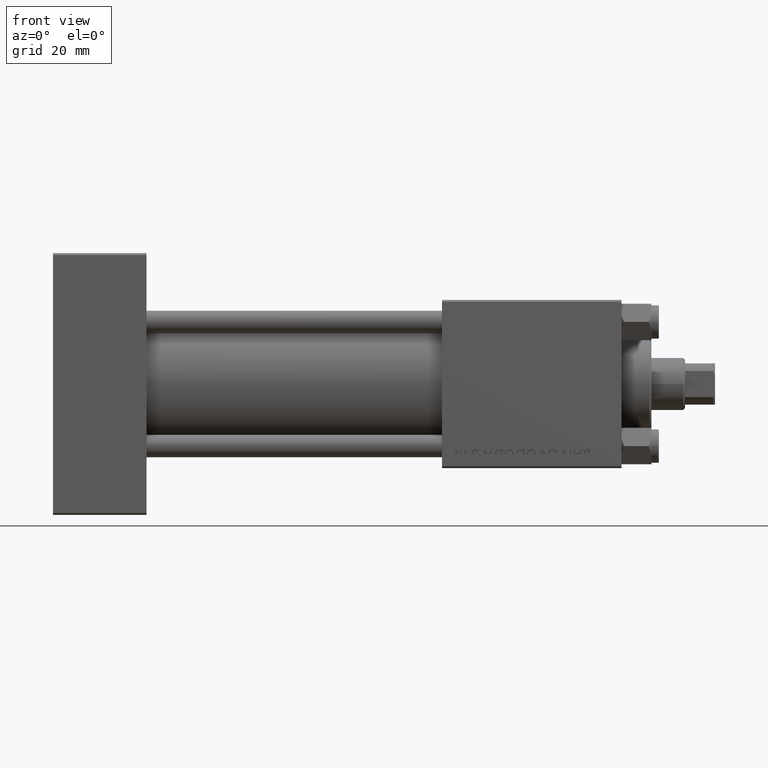
[diagram: clean part render]
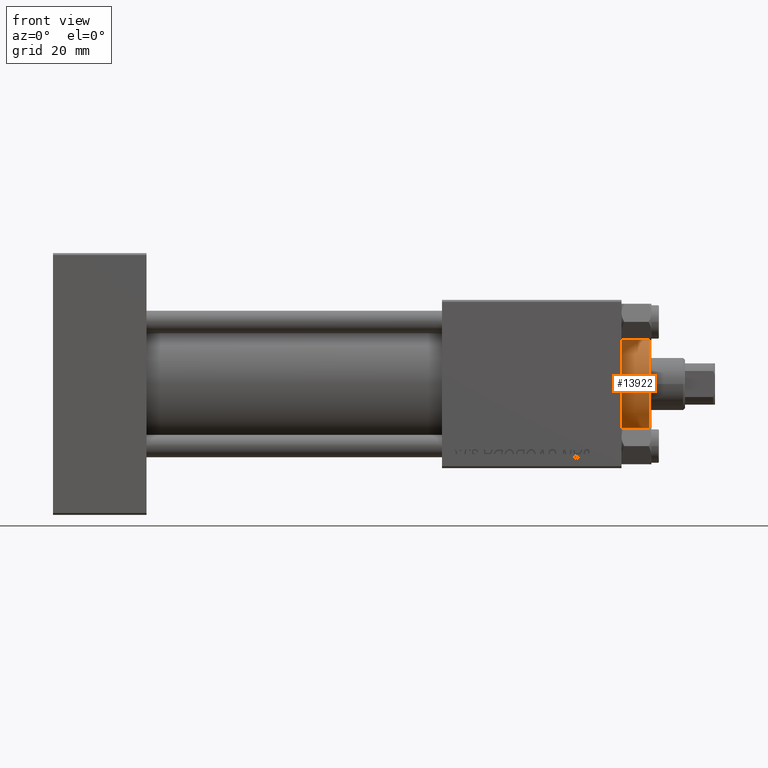
[diagram: same view with one face highlighted and labeled with its STEP entity id]
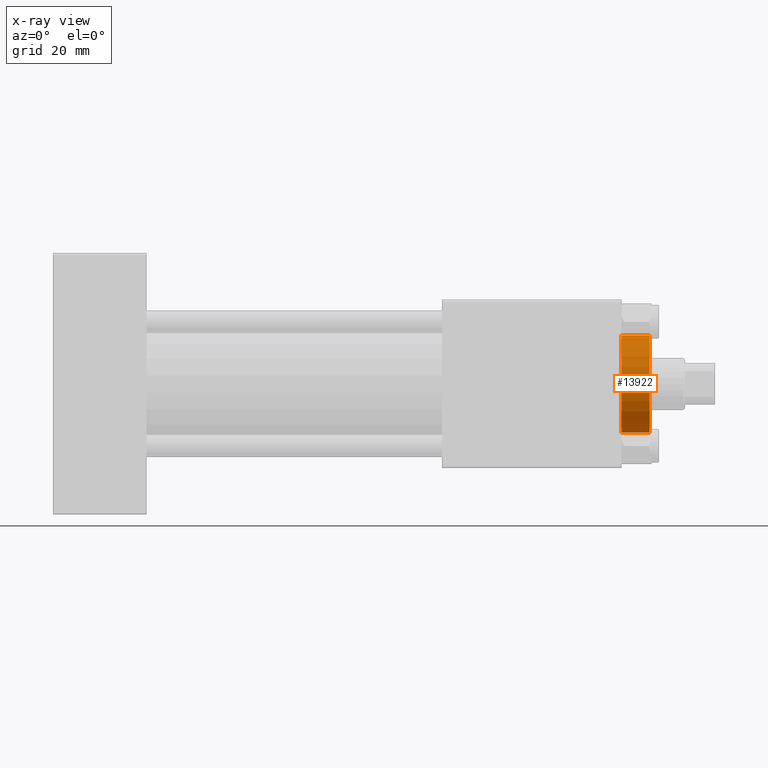
[diagram: x-ray of the same camera — body ghosted, the highlighted face saturated]
A machine part, front view. The second image highlights one B-rep face of the part: STEP entity #13922.
The next image is the same camera in x-ray: the body ghosted, the highlighted face saturated — about 0% of this face is hidden behind the body in this view.
In plain terms, the highlighted cylindrical surface (partial cylindrical patch) has radius 13 mm, axis along (-1, -0, 0).
Its self-contained STEP definition (entity closure, byte-faithful):
#2173 = EDGE_CURVE ( 'NONE', #18007, #6856, #14512, .T. ) ;
#2360 = CARTESIAN_POINT ( 'NONE',  ( -13.00000000000000178, 0.000000000000000000, 36.69999999999999574 ) ) ;
#3246 = EDGE_LOOP ( 'NONE', ( #9283, #44826, #26133, #14409 ) ) ;
#3351 = EDGE_CURVE ( 'NONE', #42212, #6856, #29241, .T. ) ;
#4205 = FACE_OUTER_BOUND ( 'NONE', #3246, .T. ) ;
#4529 = AXIS2_PLACEMENT_3D ( 'NONE', #23363, #42854, #8229 ) ;
#6856 = VERTEX_POINT ( 'NONE', #12021 ) ;
#6987 = CARTESIAN_POINT ( 'NONE',  ( -13.00000000000000178, 0.000000000000000000, 28.69999999999999929 ) ) ;
#7952 = EDGE_CURVE ( 'NONE', #18007, #16523, #42245, .T. ) ;
#8229 = DIRECTION ( 'NONE',  ( -1.000000000000000000, 0.000000000000000000, 0.000000000000000000 ) ) ;
#8281 = DIRECTION ( 'NONE',  ( 0.000000000000000000, 0.000000000000000000, -1.000000000000000000 ) ) ;
#9283 = ORIENTED_EDGE ( 'NONE', *, *, #2173, .F. ) ;
#9600 = EDGE_CURVE ( 'NONE', #16523, #42212, #13698, .T. ) ;
#12021 = CARTESIAN_POINT ( 'NONE',  ( 13.00000000000000178, 1.592040838891559293E-15, 28.69999999999999929 ) ) ;
#13698 = LINE ( 'NONE', #2360, #47961 ) ;
#13922 = ADVANCED_FACE ( 'NONE', ( #4205 ), #23869, .T. ) ;
#14409 = ORIENTED_EDGE ( 'NONE', *, *, #3351, .T. ) ;
#14512 = LINE ( 'NONE', #44618, #39720 ) ;
#16523 = VERTEX_POINT ( 'NONE', #25137 ) ;
#18007 = VERTEX_POINT ( 'NONE', #23875 ) ;
#22917 = CARTESIAN_POINT ( 'NONE',  ( 0.000000000000000000, 0.000000000000000000, 28.69999999999999929 ) ) ;
#23363 = CARTESIAN_POINT ( 'NONE',  ( 0.000000000000000000, 0.000000000000000000, 36.69999999999999574 ) ) ;
#23869 = CYLINDRICAL_SURFACE ( 'NONE', #4529, 13.00000000000000178 ) ;
#23875 = CARTESIAN_POINT ( 'NONE',  ( 13.00000000000000178, 1.592040838891559293E-15, 36.20000000000000995 ) ) ;
#24402 = AXIS2_PLACEMENT_3D ( 'NONE', #22917, #38353, #25958 ) ;
#24473 = AXIS2_PLACEMENT_3D ( 'NONE', #42905, #8281, #38366 ) ;
#25137 = CARTESIAN_POINT ( 'NONE',  ( -13.00000000000000178, 0.000000000000000000, 36.20000000000000995 ) ) ;
#25641 = DIRECTION ( 'NONE',  ( -0.000000000000000000, -0.000000000000000000, -1.000000000000000000 ) ) ;
#25958 = DIRECTION ( 'NONE',  ( 1.000000000000000000, 0.000000000000000000, 0.000000000000000000 ) ) ;
#26133 = ORIENTED_EDGE ( 'NONE', *, *, #9600, .T. ) ;
#29241 = CIRCLE ( 'NONE', #24402, 13.00000000000000178 ) ;
#38353 = DIRECTION ( 'NONE',  ( 0.000000000000000000, 0.000000000000000000, 1.000000000000000000 ) ) ;
#38366 = DIRECTION ( 'NONE',  ( 1.000000000000000000, 0.000000000000000000, 0.000000000000000000 ) ) ;
#39720 = VECTOR ( 'NONE', #25641, 1000.000000000000000 ) ;
#42212 = VERTEX_POINT ( 'NONE', #6987 ) ;
#42245 = CIRCLE ( 'NONE', #24473, 13.00000000000000178 ) ;
#42854 = DIRECTION ( 'NONE',  ( -0.000000000000000000, -0.000000000000000000, -1.000000000000000000 ) ) ;
#42905 = CARTESIAN_POINT ( 'NONE',  ( 0.000000000000000000, 0.000000000000000000, 36.20000000000000995 ) ) ;
#44618 = CARTESIAN_POINT ( 'NONE',  ( 13.00000000000000178, 1.592040838891559293E-15, 36.69999999999999574 ) ) ;
#44826 = ORIENTED_EDGE ( 'NONE', *, *, #7952, .T. ) ;
#47961 = VECTOR ( 'NONE', #49079, 1000.000000000000000 ) ;
#49079 = DIRECTION ( 'NONE',  ( -0.000000000000000000, -0.000000000000000000, -1.000000000000000000 ) ) ;